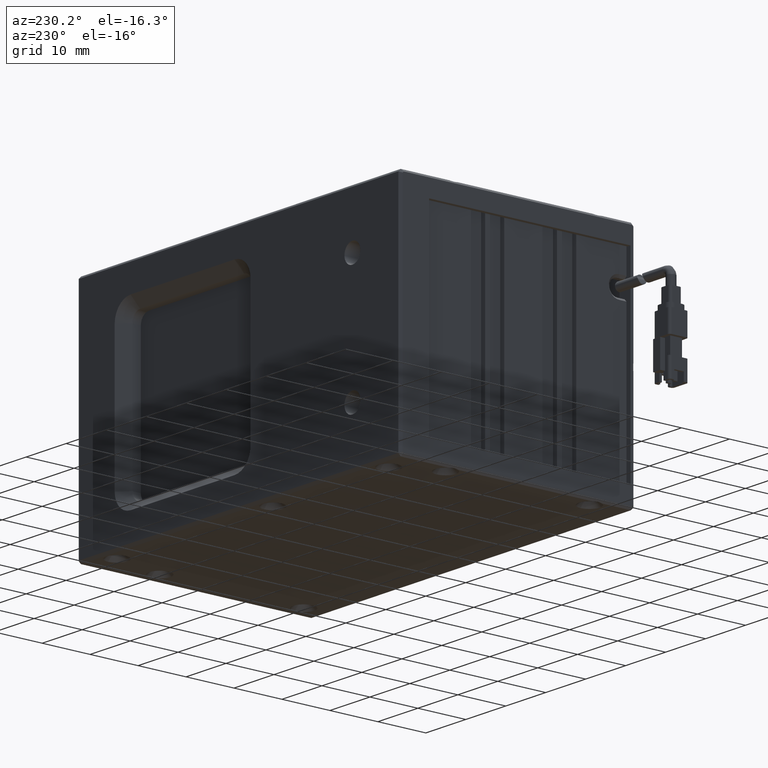
[diagram: clean part render]
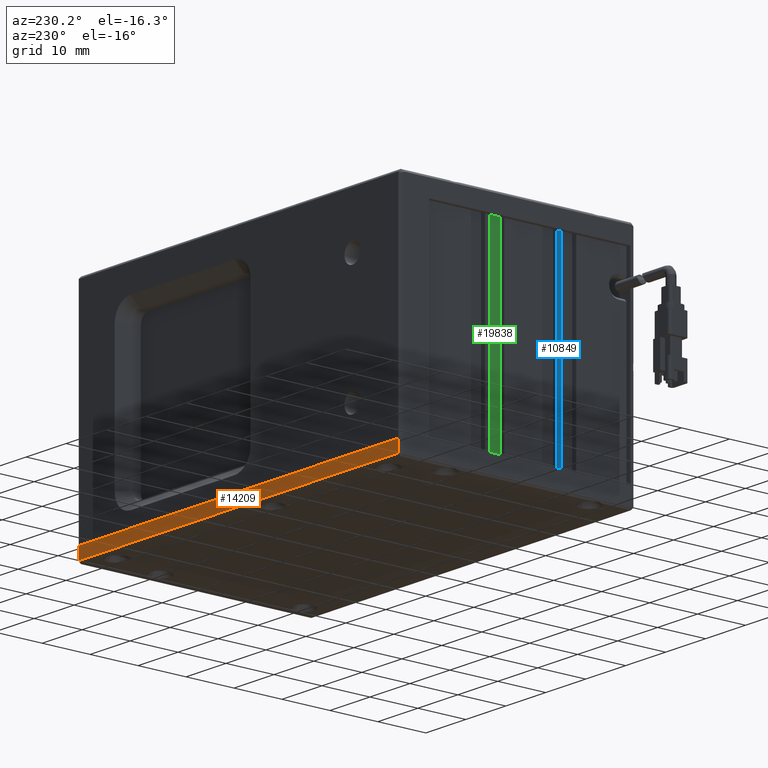
[diagram: same view with three faces highlighted in distinct colors, each labeled with its STEP entity id]
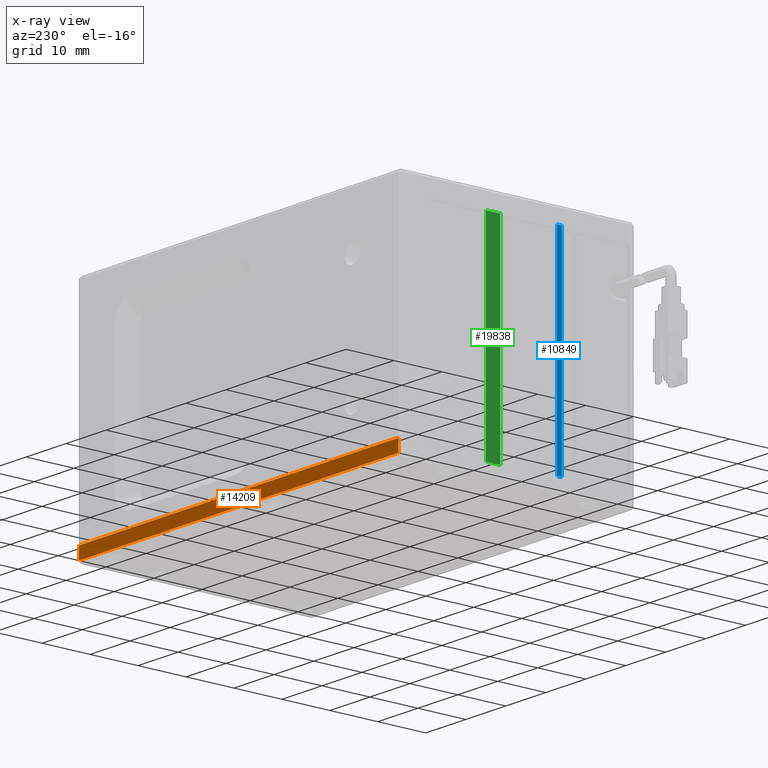
[diagram: x-ray of the same camera — body ghosted, the three highlighted faces saturated]
A machine part, auxiliary view with three faces highlighted in distinct colors.
The next image is the same camera in x-ray (body ghosted, the three faces saturated) — at least one of them is partly hidden behind the body in this view.
Their STEP definitions:

[orange] entity #14209 — the highlighted planar face has unit normal (0, -1, 0).
#1925 = DIRECTION ( 'NONE',  ( 0.0000000000000000000, -1.000000000000000000, 0.0000000000000000000 ) ) ;
#2428 = AXIS2_PLACEMENT_3D ( 'NONE', #15400, #1925, #17614 ) ;
#4138 = PLANE ( 'NONE',  #2428 ) ;
#4291 = CARTESIAN_POINT ( 'NONE',  ( -4.040901881480000000, 40.74734783201800800, -37.00000000000000000 ) ) ;
#4734 = ORIENTED_EDGE ( 'NONE', *, *, #14817, .F. ) ;
#4800 = VERTEX_POINT ( 'NONE', #18882 ) ;
#5477 = ORIENTED_EDGE ( 'NONE', *, *, #19508, .F. ) ;
#5539 = EDGE_CURVE ( 'NONE', #18122, #19830, #20305, .T. ) ;
#7485 = EDGE_LOOP ( 'NONE', ( #5477, #4734, #22642, #15920 ) ) ;
#8379 = VECTOR ( 'NONE', #26500, 1000.000000000000000 ) ;
#8799 = DIRECTION ( 'NONE',  ( -1.000000000000000000, -0.0000000000000000000, -0.0000000000000000000 ) ) ;
#8894 = EDGE_CURVE ( 'NONE', #19830, #24037, #12911, .T. ) ;
#10555 = LINE ( 'NONE', #4291, #21062 ) ;
#11108 = LINE ( 'NONE', #29158, #23040 ) ;
#12209 = VECTOR ( 'NONE', #17551, 1000.000000000000000 ) ;
#12911 = LINE ( 'NONE', #19858, #12209 ) ;
#12987 = FACE_OUTER_BOUND ( 'NONE', #7485, .T. ) ;
#14209 = ADVANCED_FACE ( 'NONE', ( #12987 ), #4138, .F. ) ;
#14817 = EDGE_CURVE ( 'NONE', #24037, #4800, #11108, .T. ) ;
#15400 = CARTESIAN_POINT ( 'NONE',  ( -45.64090188147999800, 40.74734783202000400, -39.61370277042000500 ) ) ;
#15631 = DIRECTION ( 'NONE',  ( 0.0000000000000000000, 0.0000000000000000000, 1.000000000000000000 ) ) ;
#15920 = ORIENTED_EDGE ( 'NONE', *, *, #5539, .F. ) ;
#17551 = DIRECTION ( 'NONE',  ( 1.000000000000000000, 0.0000000000000000000, 0.0000000000000000000 ) ) ;
#17614 = DIRECTION ( 'NONE',  ( 1.000000000000000000, 0.0000000000000000000, 0.0000000000000000000 ) ) ;
#18122 = VERTEX_POINT ( 'NONE', #18659 ) ;
#18659 = CARTESIAN_POINT ( 'NONE',  ( -44.04090188148000400, 40.74734783201999700, -37.00000000000421400 ) ) ;
#18882 = CARTESIAN_POINT ( 'NONE',  ( 35.95909811852001100, 40.74734783201950700, -37.00000000000361700 ) ) ;
#19508 = EDGE_CURVE ( 'NONE', #4800, #18122, #10555, .T. ) ;
#19830 = VERTEX_POINT ( 'NONE', #21045 ) ;
#19858 = CARTESIAN_POINT ( 'NONE',  ( -4.040901881479992900, 40.74734783202000400, -39.50000000000499500 ) ) ;
#20305 = LINE ( 'NONE', #28882, #8379 ) ;
#21045 = CARTESIAN_POINT ( 'NONE',  ( -44.04090188147704800, 40.74734783202011800, -39.50000000000018500 ) ) ;
#21062 = VECTOR ( 'NONE', #8799, 1000.000000000000000 ) ;
#22642 = ORIENTED_EDGE ( 'NONE', *, *, #8894, .F. ) ;
#23040 = VECTOR ( 'NONE', #15631, 1000.000000000000000 ) ;
#24037 = VERTEX_POINT ( 'NONE', #27073 ) ;
#26500 = DIRECTION ( 'NONE',  ( -0.0000000000000000000, -0.0000000000000000000, -1.000000000000000000 ) ) ;
#27073 = CARTESIAN_POINT ( 'NONE',  ( 35.95909811851836200, 40.74734783191651400, -39.50000000010599200 ) ) ;
#28882 = CARTESIAN_POINT ( 'NONE',  ( -44.04090188147999600, 40.74734783201999700, -38.25000000000500200 ) ) ;
#29158 = CARTESIAN_POINT ( 'NONE',  ( 35.95909811852001100, 40.74734783201999700, -38.25000000000500200 ) ) ;

[blue] entity #10849 — the highlighted planar face has unit normal (-1, 0, 0).
#523 = ORIENTED_EDGE ( 'NONE', *, *, #26505, .T. ) ;
#2723 = CARTESIAN_POINT ( 'NONE',  ( -43.54090188148000400, 6.747347832017999800, 4.999999999995095500 ) ) ;
#2810 = LINE ( 'NONE', #2723, #8109 ) ;
#2813 = DIRECTION ( 'NONE',  ( 0.0000000000000000000, 1.000000000000000000, 0.0000000000000000000 ) ) ;
#4102 = DIRECTION ( 'NONE',  ( -0.0000000000000000000, -0.0000000000000000000, 1.000000000000000000 ) ) ;
#4689 = ORIENTED_EDGE ( 'NONE', *, *, #7900, .T. ) ;
#4740 = CARTESIAN_POINT ( 'NONE',  ( -43.54090188148387600, 6.247347832018160600, 4.999999999995068800 ) ) ;
#5312 = CARTESIAN_POINT ( 'NONE',  ( -43.54090188148387600, 7.247347832018173000, 4.999999999995068800 ) ) ;
#6150 = VECTOR ( 'NONE', #9784, 1000.000000000000000 ) ;
#6717 = EDGE_CURVE ( 'NONE', #20199, #10409, #18024, .T. ) ;
#7900 = EDGE_CURVE ( 'NONE', #20199, #23615, #2810, .T. ) ;
#8038 = CARTESIAN_POINT ( 'NONE',  ( -43.54090188148000400, 6.175128167105999200, -37.84000000000000300 ) ) ;
#8109 = VECTOR ( 'NONE', #2813, 1000.000000000000000 ) ;
#8204 = ORIENTED_EDGE ( 'NONE', *, *, #14751, .F. ) ;
#9578 = CARTESIAN_POINT ( 'NONE',  ( -43.54090188148000400, 6.747347832017999800, -37.00000000000009900 ) ) ;
#9784 = DIRECTION ( 'NONE',  ( -0.0000000000000000000, -0.0000000000000000000, -1.000000000000000000 ) ) ;
#10287 = DIRECTION ( 'NONE',  ( 0.0000000000000000000, 0.0000000000000000000, 1.000000000000000000 ) ) ;
#10409 = VERTEX_POINT ( 'NONE', #17619 ) ;
#10849 = ADVANCED_FACE ( 'NONE', ( #15059 ), #28183, .T. ) ;
#11968 = CARTESIAN_POINT ( 'NONE',  ( -43.54090188148387600, 7.247347832018173000, -37.00000000000007100 ) ) ;
#12765 = VERTEX_POINT ( 'NONE', #11968 ) ;
#14751 = EDGE_CURVE ( 'NONE', #12765, #23615, #17410, .T. ) ;
#15059 = FACE_OUTER_BOUND ( 'NONE', #21520, .T. ) ;
#16710 = VECTOR ( 'NONE', #4102, 1000.000000000000000 ) ;
#17410 = LINE ( 'NONE', #26481, #16710 ) ;
#17619 = CARTESIAN_POINT ( 'NONE',  ( -43.54090188148387600, 6.247347832018160600, -37.00000000000007100 ) ) ;
#18024 = LINE ( 'NONE', #25513, #6150 ) ;
#19052 = ORIENTED_EDGE ( 'NONE', *, *, #6717, .F. ) ;
#20199 = VERTEX_POINT ( 'NONE', #4740 ) ;
#21520 = EDGE_LOOP ( 'NONE', ( #523, #19052, #4689, #8204 ) ) ;
#23316 = VECTOR ( 'NONE', #27560, 1000.000000000000000 ) ;
#23615 = VERTEX_POINT ( 'NONE', #5312 ) ;
#23722 = DIRECTION ( 'NONE',  ( -1.000000000000000000, 0.0000000000000000000, 0.0000000000000000000 ) ) ;
#24020 = LINE ( 'NONE', #9578, #23316 ) ;
#25513 = CARTESIAN_POINT ( 'NONE',  ( -43.54090188148762800, 6.247347832017999800, -16.00000000000249800 ) ) ;
#26481 = CARTESIAN_POINT ( 'NONE',  ( -43.54090188148762800, 7.247347832017998900, -16.00000000000250100 ) ) ;
#26505 = EDGE_CURVE ( 'NONE', #12765, #10409, #24020, .T. ) ;
#26770 = AXIS2_PLACEMENT_3D ( 'NONE', #8038, #23722, #10287 ) ;
#27560 = DIRECTION ( 'NONE',  ( -0.0000000000000000000, -1.000000000000000000, -0.0000000000000000000 ) ) ;
#28183 = PLANE ( 'NONE',  #26770 ) ;

[green] entity #19838 — the highlighted planar face has unit normal (-1, 0, 0).
#1216 = ORIENTED_EDGE ( 'NONE', *, *, #7084, .T. ) ;
#2142 = DIRECTION ( 'NONE',  ( -0.0000000000000000000, -0.0000000000000000000, -1.000000000000000000 ) ) ;
#2170 = CARTESIAN_POINT ( 'NONE',  ( -42.54090188148268200, 18.24734783202028500, 4.999999999995069700 ) ) ;
#2553 = VERTEX_POINT ( 'NONE', #6663 ) ;
#2987 = EDGE_LOOP ( 'NONE', ( #18752, #1216, #11773, #23765 ) ) ;
#3656 = EDGE_CURVE ( 'NONE', #23944, #14841, #25664, .T. ) ;
#4658 = DIRECTION ( 'NONE',  ( 0.0000000000000000000, 1.000000000000000000, 0.0000000000000000000 ) ) ;
#5098 = CARTESIAN_POINT ( 'NONE',  ( -42.54090188148596500, 14.24734783201900600, 4.999999999995000400 ) ) ;
#5566 = DIRECTION ( 'NONE',  ( -1.000000000000000000, 0.0000000000000000000, 0.0000000000000000000 ) ) ;
#6663 = CARTESIAN_POINT ( 'NONE',  ( -42.54090188148268200, 21.24734783201984500, -37.00000000000007100 ) ) ;
#7084 = EDGE_CURVE ( 'NONE', #21522, #2553, #26135, .T. ) ;
#7725 = PLANE ( 'NONE',  #23117 ) ;
#9450 = FACE_OUTER_BOUND ( 'NONE', #2987, .T. ) ;
#9921 = EDGE_CURVE ( 'NONE', #23944, #2553, #14783, .T. ) ;
#11773 = ORIENTED_EDGE ( 'NONE', *, *, #9921, .F. ) ;
#12600 = LINE ( 'NONE', #5098, #24528 ) ;
#13471 = VECTOR ( 'NONE', #2142, 1000.000000000000000 ) ;
#14019 = DIRECTION ( 'NONE',  ( 0.0000000000000000000, 1.000000000000000000, 0.0000000000000000000 ) ) ;
#14431 = EDGE_CURVE ( 'NONE', #14841, #21522, #12600, .T. ) ;
#14783 = LINE ( 'NONE', #20346, #26054 ) ;
#14841 = VERTEX_POINT ( 'NONE', #2170 ) ;
#15853 = DIRECTION ( 'NONE',  ( 0.0000000000000000000, 0.0000000000000000000, 1.000000000000000000 ) ) ;
#17504 = CARTESIAN_POINT ( 'NONE',  ( -42.54090188148268200, 18.24734783202028500, -37.00000000000007100 ) ) ;
#18752 = ORIENTED_EDGE ( 'NONE', *, *, #14431, .T. ) ;
#18978 = CARTESIAN_POINT ( 'NONE',  ( -42.54090188147999600, 18.17512816711000700, -37.84000000000000300 ) ) ;
#19651 = VECTOR ( 'NONE', #15853, 1000.000000000000000 ) ;
#19838 = ADVANCED_FACE ( 'NONE', ( #9450 ), #7725, .T. ) ;
#20346 = CARTESIAN_POINT ( 'NONE',  ( -42.54090188148596500, 14.24734783201900600, -37.00000000000000000 ) ) ;
#21236 = DIRECTION ( 'NONE',  ( 0.0000000000000000000, 0.0000000000000000000, 1.000000000000000000 ) ) ;
#21522 = VERTEX_POINT ( 'NONE', #28638 ) ;
#23117 = AXIS2_PLACEMENT_3D ( 'NONE', #18978, #5566, #21236 ) ;
#23765 = ORIENTED_EDGE ( 'NONE', *, *, #3656, .T. ) ;
#23944 = VERTEX_POINT ( 'NONE', #17504 ) ;
#24528 = VECTOR ( 'NONE', #14019, 1000.000000000000000 ) ;
#24582 = CARTESIAN_POINT ( 'NONE',  ( -42.54090188147998900, 21.24734783202004400, -16.00000000000250100 ) ) ;
#24946 = CARTESIAN_POINT ( 'NONE',  ( -42.54090188147999600, 18.24734783202195800, -16.00000000000250100 ) ) ;
#25664 = LINE ( 'NONE', #24946, #19651 ) ;
#26054 = VECTOR ( 'NONE', #4658, 1000.000000000000000 ) ;
#26135 = LINE ( 'NONE', #24582, #13471 ) ;
#28638 = CARTESIAN_POINT ( 'NONE',  ( -42.54090188148268200, 21.24734783201984500, 4.999999999995068800 ) ) ;